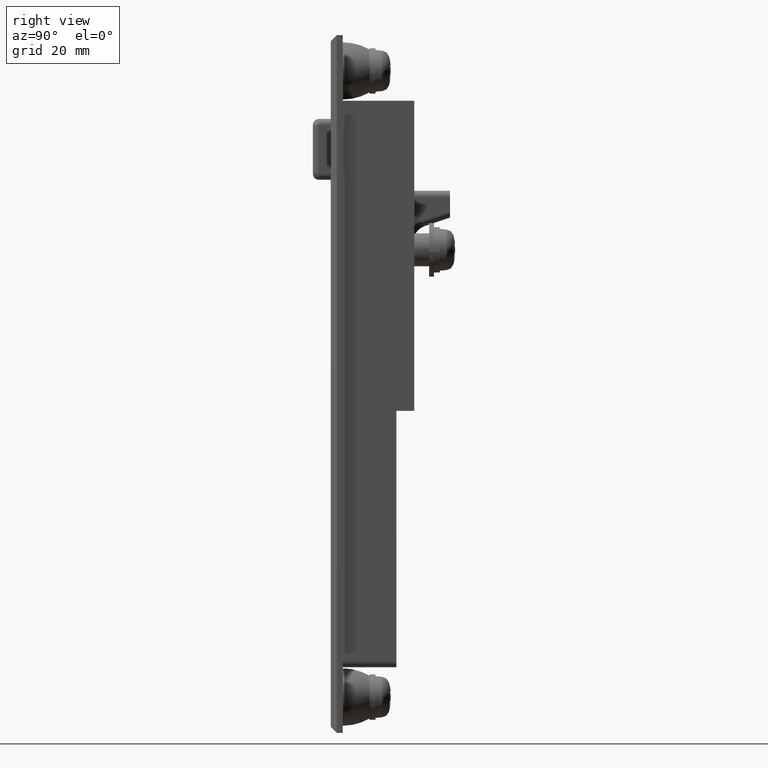
[diagram: clean part render]
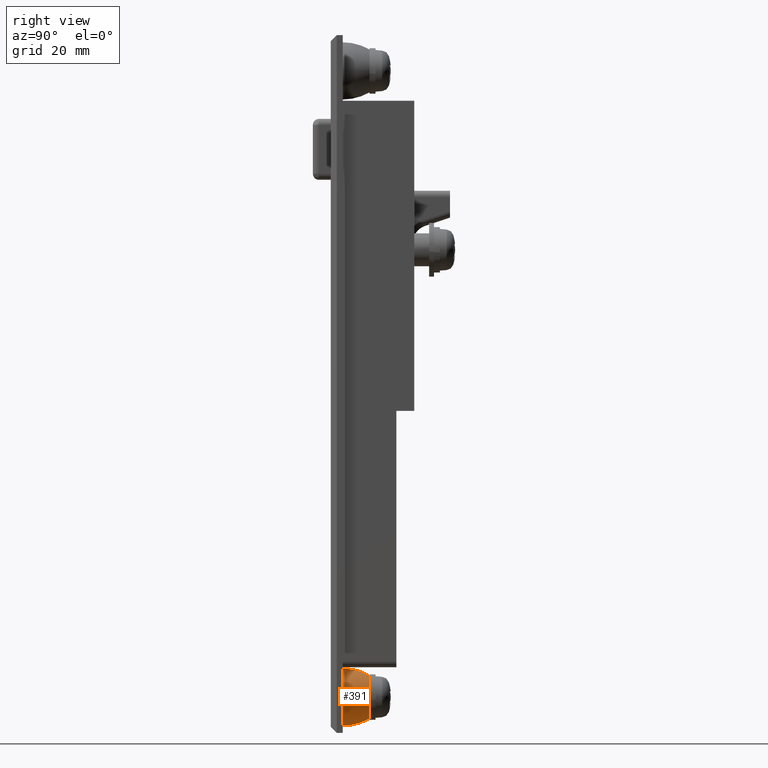
[diagram: same view with one face highlighted and labeled with its STEP entity id]
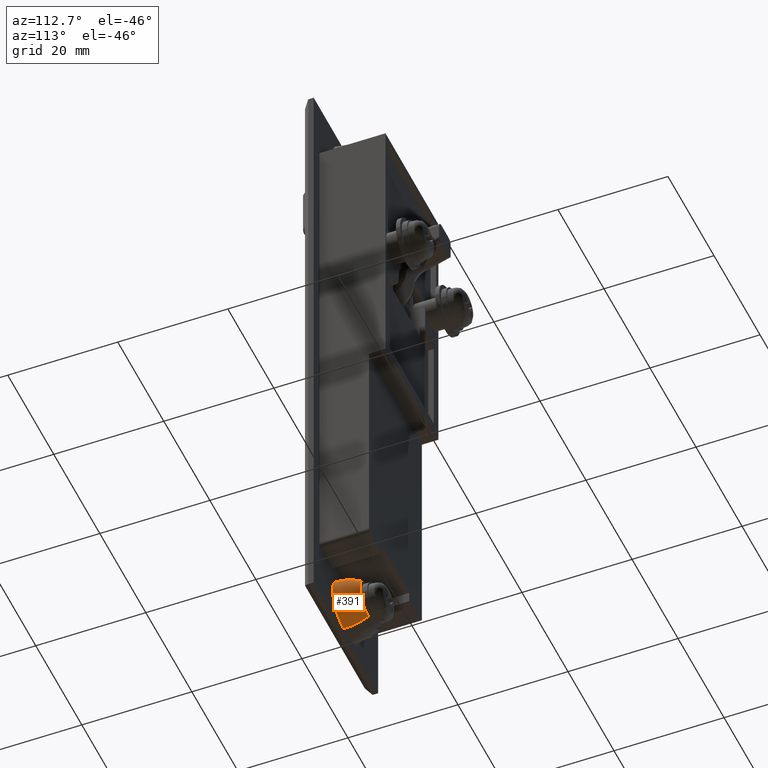
[diagram: same view with one face highlighted and labeled with its STEP entity id]
A machine part, right view. The second image highlights one B-rep face of the part: STEP entity #391.
A second angle (auxiliary view) of the same face is appended — the face is thin or edge-on in the first view.
In plain terms, the highlighted face is a freeform B-spline surface patch.
Its self-contained STEP definition (entity closure, byte-faithful):
#391=ADVANCED_FACE('',(#1263),#1262,.T.);
#1262=( BOUNDED_SURFACE() B_SPLINE_SURFACE( 2,2,((#3742,#3743,#3744,#3745,#3746),(#3747,#3748,#3749,#3750,#3751),(#3752,#3753,#3754,#3755,#3756)), .UNSPECIFIED.,.F.,.F.,.F.) B_SPLINE_SURFACE_WITH_KNOTS((3,3),(3,2,3),(-5.23598775598E-01,3.33066907388E-15),(3.14159265389E+00,4.71238898038E+00,6.28318530718E+00), .UNSPECIFIED. ) GEOMETRIC_REPRESENTATION_ITEM() RATIONAL_B_SPLINE_SURFACE(((9.99999999890E-01,7.07106781242E-01,1.00000000000E+00,7.07106781187E-01,1.00000000000E+00),(9.65925826183E-01,6.83012701945E-01,9.65925826289E-01,6.83012701892E-01,9.65925826289E-01),(9.99999999890E-01,7.07106781242E-01,1.00000000000E+00,7.07106781187E-01,1.00000000000E+00))) REPRESENTATION_ITEM('') SURFACE() );
#1263=FACE_OUTER_BOUND('',#3757,.T.);
#3742=CARTESIAN_POINT('',(-7.50000000000E+00,-1.00000000096E+00,3.35942286341E+01));
#3743=CARTESIAN_POINT('',(-7.50000000000E+00,-4.59422863406E+00,3.35942286331E+01));
#3744=CARTESIAN_POINT('',(-7.50000000000E+00,-4.59422863406E+00,3.00000000000E+01));
#3745=CARTESIAN_POINT('',(-7.50000000000E+00,-4.59422863406E+00,2.64057713659E+01));
#3746=CARTESIAN_POINT('',(-7.50000000000E+00,-1.00000000000E+00,2.64057713659E+01));
#3747=CARTESIAN_POINT('',(-9.58845726812E+00,-1.00000000128E+00,3.48000000000E+01));
#3748=CARTESIAN_POINT('',(-9.58845726812E+00,-5.80000000000E+00,3.47999999987E+01));
#3749=CARTESIAN_POINT('',(-9.58845726812E+00,-5.80000000000E+00,3.00000000000E+01));
#3750=CARTESIAN_POINT('',(-9.58845726812E+00,-5.80000000000E+00,2.52000000000E+01));
#3751=CARTESIAN_POINT('',(-9.58845726812E+00,-1.00000000000E+00,2.52000000000E+01));
#3752=CARTESIAN_POINT('',(-1.20000000000E+01,-1.00000000128E+00,3.48000000000E+01));
#3753=CARTESIAN_POINT('',(-1.20000000000E+01,-5.80000000000E+00,3.47999999987E+01));
#3754=CARTESIAN_POINT('',(-1.20000000000E+01,-5.80000000000E+00,3.00000000000E+01));
#3755=CARTESIAN_POINT('',(-1.20000000000E+01,-5.80000000000E+00,2.52000000000E+01));
#3756=CARTESIAN_POINT('',(-1.20000000000E+01,-1.00000000000E+00,2.52000000000E+01));
#3757=EDGE_LOOP('',(#5319,#5320,#5321,#5322));
#5319=ORIENTED_EDGE('',*,*,#6594,.T.);
#5320=ORIENTED_EDGE('',*,*,#6589,.T.);
#5321=ORIENTED_EDGE('',*,*,#6597,.T.);
#5322=ORIENTED_EDGE('',*,*,#6598,.F.);
#6589=EDGE_CURVE('',#8451,#8444,#8452,.T.);
#6594=EDGE_CURVE('',#8485,#8451,#8486,.T.);
#6597=EDGE_CURVE('',#8444,#8505,#8506,.T.);
#6598=EDGE_CURVE('',#8485,#8505,#8512,.T.);
#8444=VERTEX_POINT('',#12872);
#8451=VERTEX_POINT('',#12876);
#8452=CIRCLE('',#12880,3.59422863406E+00);
#8485=VERTEX_POINT('',#12899);
#8486=CIRCLE('',#12903,9.00000000000E+00);
#8505=VERTEX_POINT('',#12912);
#8506=CIRCLE('',#12916,9.00000000000E+00);
#8512=CIRCLE('',#12920,4.80000000000E+00);
#12872=CARTESIAN_POINT('',(-7.50000000000E+00,-1.00000000000E+00,3.35942286341E+01));
#12876=CARTESIAN_POINT('',(-7.50000000000E+00,-1.00000000000E+00,2.64057713659E+01));
#12877=CARTESIAN_POINT('',(-7.50000000000E+00,-1.00000000000E+00,3.00000000000E+01));
#12878=DIRECTION('',(-1.00000000000E+00,0.00000000000E+00,-0.00000000000E+00));
#12879=DIRECTION('',(0.00000000000E+00,3.08780928778E-15,-1.00000000000E+00));
#12880=AXIS2_PLACEMENT_3D('',#12877,#12878,#12879);
#12899=CARTESIAN_POINT('',(-1.20000000000E+01,-1.00000000000E+00,2.52000000000E+01));
#12900=CARTESIAN_POINT('',(-1.20000000000E+01,-1.00000000000E+00,3.42000000000E+01));
#12901=DIRECTION('',(0.00000000000E+00,-1.00000000000E+00,0.00000000000E+00));
#12902=DIRECTION('',(-1.77635683940E-15,-0.00000000000E+00,1.00000000000E+00));
#12903=AXIS2_PLACEMENT_3D('',#12900,#12901,#12902);
#12912=CARTESIAN_POINT('',(-1.20000000000E+01,-1.00000000000E+00,3.48000000000E+01));
#12913=CARTESIAN_POINT('',(-1.20000000000E+01,-1.00000000000E+00,2.58000000000E+01));
#12914=DIRECTION('',(0.00000000000E+00,-1.00000000000E+00,0.00000000000E+00));
#12915=DIRECTION('',(-5.00000000000E-01,-0.00000000000E+00,-8.66025403784E-01));
#12916=AXIS2_PLACEMENT_3D('',#12913,#12914,#12915);
#12917=CARTESIAN_POINT('',(-1.20000000000E+01,-1.00000000000E+00,3.00000000000E+01));
#12918=DIRECTION('',(-1.00000000000E+00,-0.00000000000E+00,0.00000000000E+00));
#12919=DIRECTION('',(-0.00000000000E+00,1.61907524425E-16,1.00000000000E+00));
#12920=AXIS2_PLACEMENT_3D('',#12917,#12918,#12919);